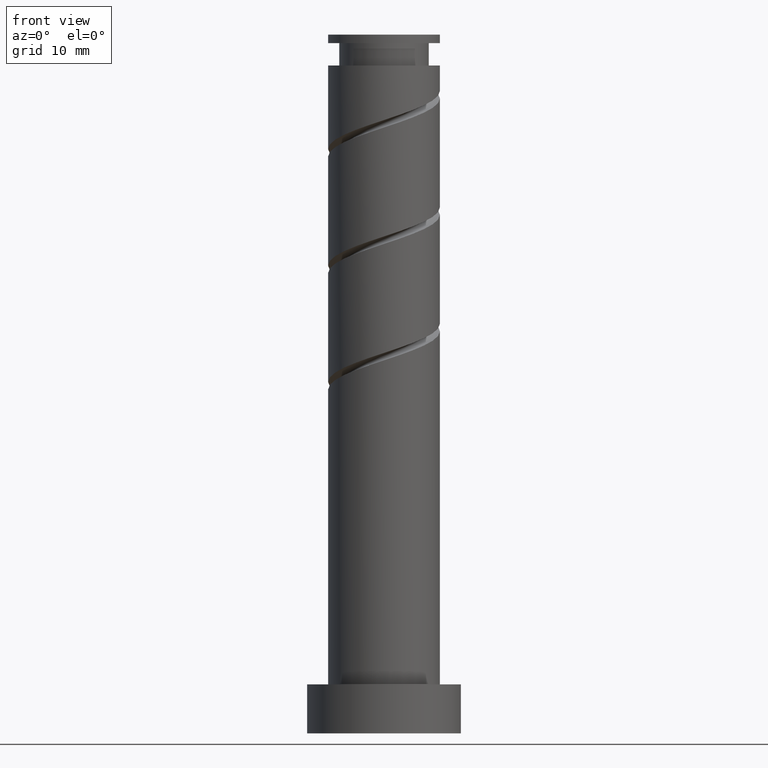
[diagram: clean part render]
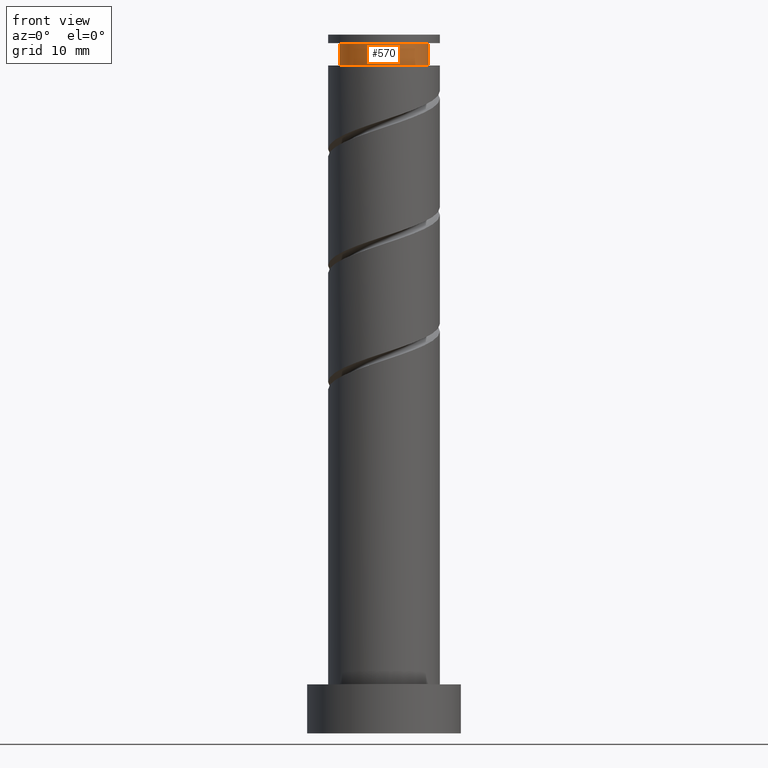
[diagram: same view with one face highlighted and labeled with its STEP entity id]
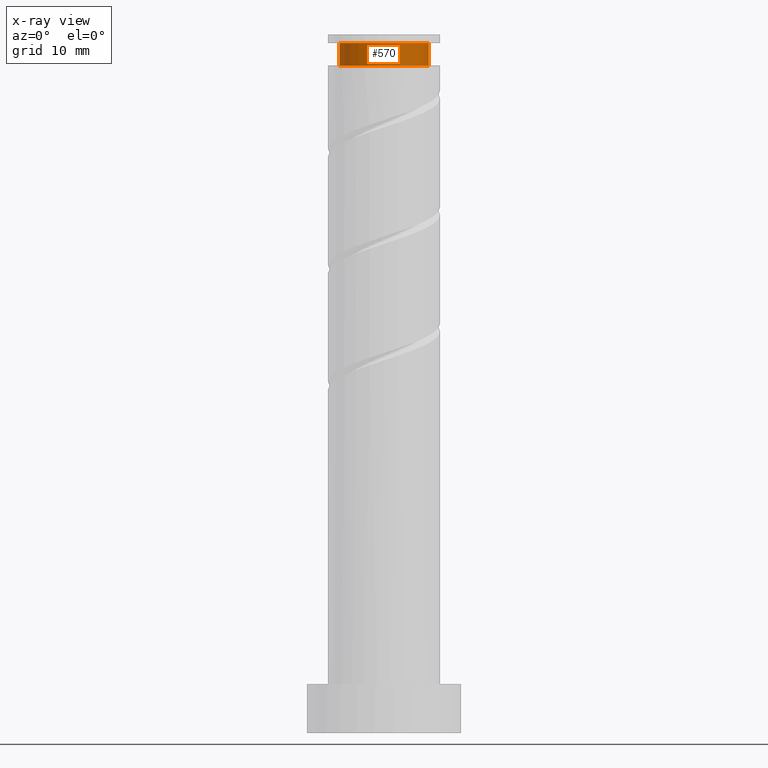
[diagram: x-ray of the same camera — body ghosted, the highlighted face saturated]
A machine part, front view. The second image highlights one B-rep face of the part: STEP entity #570.
The next image is the same camera in x-ray: the body ghosted, the highlighted face saturated — about 0% of this face is hidden behind the body in this view.
In plain terms, the highlighted cylindrical surface (partial cylindrical patch) has radius 6.4 mm, axis along (-0, -0, -1).
Its self-contained STEP definition (entity closure, byte-faithful):
#29 = LINE ( 'NONE', #1207, #140 ) ;
#57 = ORIENTED_EDGE ( 'NONE', *, *, #1413, .F. ) ;
#140 = VECTOR ( 'NONE', #871, 1000.000000000000000 ) ;
#157 = CARTESIAN_POINT ( 'NONE',  ( 6.400000000000001243, 7.837739514543061906E-16, 98.78872399348242084 ) ) ;
#298 = CARTESIAN_POINT ( 'NONE',  ( -6.400000000000001243, 0.000000000000000000, 95.58872399348241800 ) ) ;
#302 = FACE_OUTER_BOUND ( 'NONE', #933, .T. ) ;
#385 = DIRECTION ( 'NONE',  ( -1.000000000000000000, 0.000000000000000000, 0.000000000000000000 ) ) ;
#392 = EDGE_CURVE ( 'NONE', #1022, #1161, #1055, .T. ) ;
#405 = CIRCLE ( 'NONE', #1462, 6.400000000000001243 ) ;
#407 = DIRECTION ( 'NONE',  ( -0.000000000000000000, -0.000000000000000000, -1.000000000000000000 ) ) ;
#426 = LINE ( 'NONE', #1016, #1479 ) ;
#501 = CARTESIAN_POINT ( 'NONE',  ( 6.400000000000001243, 7.837739514543061906E-16, 95.58872399348241800 ) ) ;
#525 = DIRECTION ( 'NONE',  ( -1.000000000000000000, 0.000000000000000000, 0.000000000000000000 ) ) ;
#570 = ADVANCED_FACE ( 'NONE', ( #302 ), #1300, .T. ) ;
#590 = VERTEX_POINT ( 'NONE', #157 ) ;
#602 = DIRECTION ( 'NONE',  ( -0.000000000000000000, -0.000000000000000000, -1.000000000000000000 ) ) ;
#698 = VERTEX_POINT ( 'NONE', #1224 ) ;
#733 = CARTESIAN_POINT ( 'NONE',  ( 0.000000000000000000, 0.000000000000000000, 0.000000000000000000 ) ) ;
#763 = DIRECTION ( 'NONE',  ( -1.000000000000000000, 0.000000000000000000, 0.000000000000000000 ) ) ;
#799 = EDGE_CURVE ( 'NONE', #698, #1161, #426, .T. ) ;
#819 = DIRECTION ( 'NONE',  ( -0.000000000000000000, -0.000000000000000000, -1.000000000000000000 ) ) ;
#830 = ORIENTED_EDGE ( 'NONE', *, *, #799, .T. ) ;
#862 = AXIS2_PLACEMENT_3D ( 'NONE', #733, #407, #763 ) ;
#871 = DIRECTION ( 'NONE',  ( -0.000000000000000000, -0.000000000000000000, -1.000000000000000000 ) ) ;
#931 = CARTESIAN_POINT ( 'NONE',  ( 0.000000000000000000, 0.000000000000000000, 95.58872399348241800 ) ) ;
#933 = EDGE_LOOP ( 'NONE', ( #57, #1154, #830, #995 ) ) ;
#995 = ORIENTED_EDGE ( 'NONE', *, *, #392, .F. ) ;
#1016 = CARTESIAN_POINT ( 'NONE',  ( -6.400000000000001243, 0.000000000000000000, 0.000000000000000000 ) ) ;
#1022 = VERTEX_POINT ( 'NONE', #501 ) ;
#1055 = CIRCLE ( 'NONE', #1270, 6.400000000000001243 ) ;
#1098 = EDGE_CURVE ( 'NONE', #590, #698, #405, .T. ) ;
#1110 = DIRECTION ( 'NONE',  ( -0.000000000000000000, -0.000000000000000000, -1.000000000000000000 ) ) ;
#1154 = ORIENTED_EDGE ( 'NONE', *, *, #1098, .T. ) ;
#1161 = VERTEX_POINT ( 'NONE', #298 ) ;
#1207 = CARTESIAN_POINT ( 'NONE',  ( 6.400000000000001243, 7.837739514543061906E-16, 0.000000000000000000 ) ) ;
#1222 = CARTESIAN_POINT ( 'NONE',  ( 0.000000000000000000, 0.000000000000000000, 98.78872399348242084 ) ) ;
#1224 = CARTESIAN_POINT ( 'NONE',  ( -6.400000000000001243, 0.000000000000000000, 98.78872399348242084 ) ) ;
#1270 = AXIS2_PLACEMENT_3D ( 'NONE', #931, #602, #385 ) ;
#1300 = CYLINDRICAL_SURFACE ( 'NONE', #862, 6.400000000000001243 ) ;
#1413 = EDGE_CURVE ( 'NONE', #590, #1022, #29, .T. ) ;
#1462 = AXIS2_PLACEMENT_3D ( 'NONE', #1222, #1110, #525 ) ;
#1479 = VECTOR ( 'NONE', #819, 1000.000000000000000 ) ;